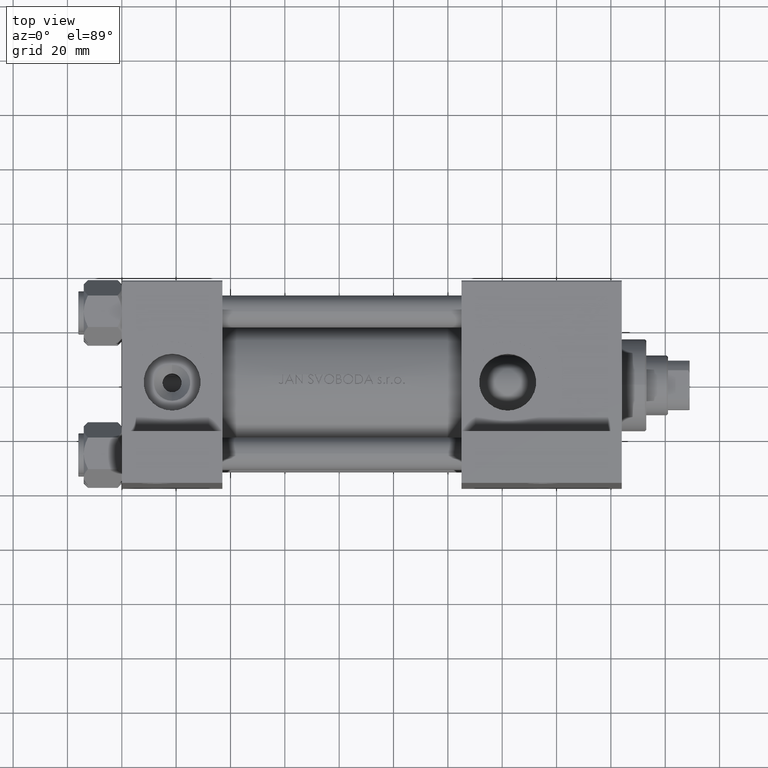
[diagram: clean part render]
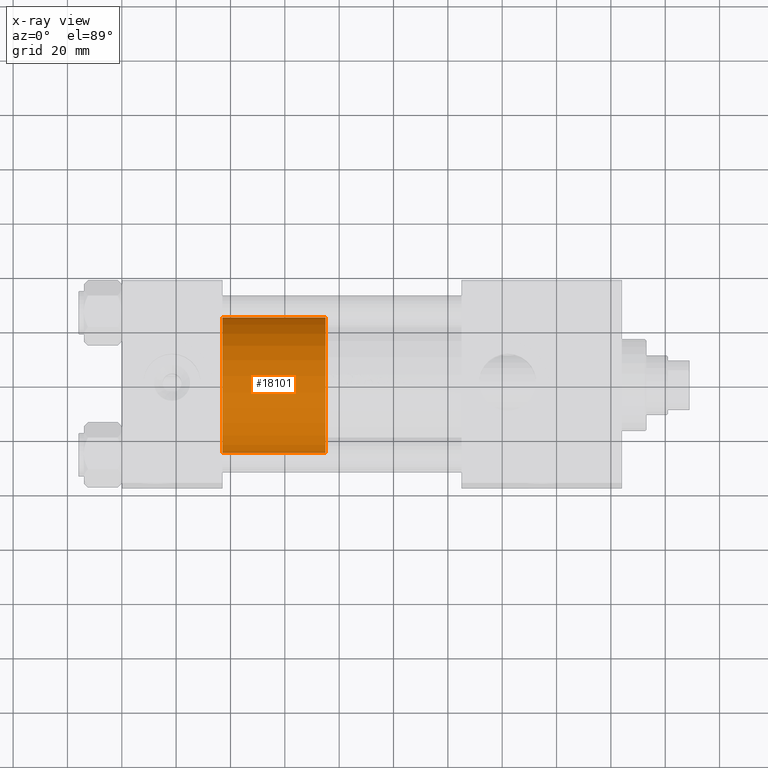
[diagram: x-ray — body ghosted, one internal face saturated and labeled with its STEP entity id]
A machine part, top view, then the same camera in x-ray: the body is ghosted and one INTERNAL B-rep face — a face not visible from any outside direction — is saturated and labeled: STEP entity #18101.
In plain terms, the highlighted cylindrical surface (partial cylindrical patch) has radius 25 mm, axis along (-1, 0, 0).
Its self-contained STEP definition (entity closure, byte-faithful):
#3489 = DIRECTION ( 'NONE',  ( -1.000000000000000000, 0.000000000000000000, 0.000000000000000000 ) ) ;
#5366 = CARTESIAN_POINT ( 'NONE',  ( 25.00000000000000000, 3.061616997868383043E-15, 0.000000000000000000 ) ) ;
#5663 = CARTESIAN_POINT ( 'NONE',  ( -25.00000000000000000, 0.000000000000000000, 38.00000000000000000 ) ) ;
#5744 = DIRECTION ( 'NONE',  ( -0.000000000000000000, -0.000000000000000000, -1.000000000000000000 ) ) ;
#6960 = CARTESIAN_POINT ( 'NONE',  ( 0.000000000000000000, 0.000000000000000000, 38.00000000000000000 ) ) ;
#8883 = DIRECTION ( 'NONE',  ( -0.000000000000000000, -0.000000000000000000, -1.000000000000000000 ) ) ;
#10917 = DIRECTION ( 'NONE',  ( 1.000000000000000000, 0.000000000000000000, 0.000000000000000000 ) ) ;
#11934 = VERTEX_POINT ( 'NONE', #5663 ) ;
#12285 = VECTOR ( 'NONE', #34721, 1000.000000000000000 ) ;
#12316 = CARTESIAN_POINT ( 'NONE',  ( 25.00000000000000000, 3.061616997868383043E-15, 38.00000000000000000 ) ) ;
#12706 = ORIENTED_EDGE ( 'NONE', *, *, #36832, .T. ) ;
#13007 = LINE ( 'NONE', #38461, #12285 ) ;
#16590 = EDGE_CURVE ( 'NONE', #11934, #26342, #39114, .T. ) ;
#17706 = DIRECTION ( 'NONE',  ( 0.000000000000000000, 0.000000000000000000, 1.000000000000000000 ) ) ;
#18101 = ADVANCED_FACE ( 'NONE', ( #27561 ), #42986, .T. ) ;
#21366 = EDGE_CURVE ( 'NONE', #49149, #23011, #13007, .T. ) ;
#23011 = VERTEX_POINT ( 'NONE', #5366 ) ;
#23671 = CIRCLE ( 'NONE', #41924, 25.00000000000000000 ) ;
#26342 = VERTEX_POINT ( 'NONE', #32314 ) ;
#27561 = FACE_OUTER_BOUND ( 'NONE', #43720, .T. ) ;
#29214 = CIRCLE ( 'NONE', #40337, 25.00000000000000000 ) ;
#30249 = ORIENTED_EDGE ( 'NONE', *, *, #21366, .F. ) ;
#30986 = ORIENTED_EDGE ( 'NONE', *, *, #16590, .T. ) ;
#31042 = CARTESIAN_POINT ( 'NONE',  ( 0.000000000000000000, 0.000000000000000000, 38.00000000000000000 ) ) ;
#32314 = CARTESIAN_POINT ( 'NONE',  ( -25.00000000000000000, 0.000000000000000000, 0.000000000000000000 ) ) ;
#33600 = DIRECTION ( 'NONE',  ( 1.000000000000000000, 0.000000000000000000, 0.000000000000000000 ) ) ;
#34721 = DIRECTION ( 'NONE',  ( -0.000000000000000000, -0.000000000000000000, -1.000000000000000000 ) ) ;
#35275 = VECTOR ( 'NONE', #5744, 1000.000000000000000 ) ;
#36832 = EDGE_CURVE ( 'NONE', #26342, #23011, #29214, .T. ) ;
#38461 = CARTESIAN_POINT ( 'NONE',  ( 25.00000000000000000, 3.061616997868383043E-15, 38.00000000000000000 ) ) ;
#38554 = AXIS2_PLACEMENT_3D ( 'NONE', #31042, #8883, #3489 ) ;
#39114 = LINE ( 'NONE', #39610, #35275 ) ;
#39610 = CARTESIAN_POINT ( 'NONE',  ( -25.00000000000000000, 0.000000000000000000, 38.00000000000000000 ) ) ;
#40337 = AXIS2_PLACEMENT_3D ( 'NONE', #41533, #42023, #10917 ) ;
#41533 = CARTESIAN_POINT ( 'NONE',  ( 0.000000000000000000, 0.000000000000000000, 0.000000000000000000 ) ) ;
#41924 = AXIS2_PLACEMENT_3D ( 'NONE', #6960, #17706, #33600 ) ;
#42023 = DIRECTION ( 'NONE',  ( 0.000000000000000000, 0.000000000000000000, 1.000000000000000000 ) ) ;
#42075 = EDGE_CURVE ( 'NONE', #11934, #49149, #23671, .T. ) ;
#42986 = CYLINDRICAL_SURFACE ( 'NONE', #38554, 25.00000000000000000 ) ;
#43720 = EDGE_LOOP ( 'NONE', ( #30249, #44464, #30986, #12706 ) ) ;
#44464 = ORIENTED_EDGE ( 'NONE', *, *, #42075, .F. ) ;
#49149 = VERTEX_POINT ( 'NONE', #12316 ) ;